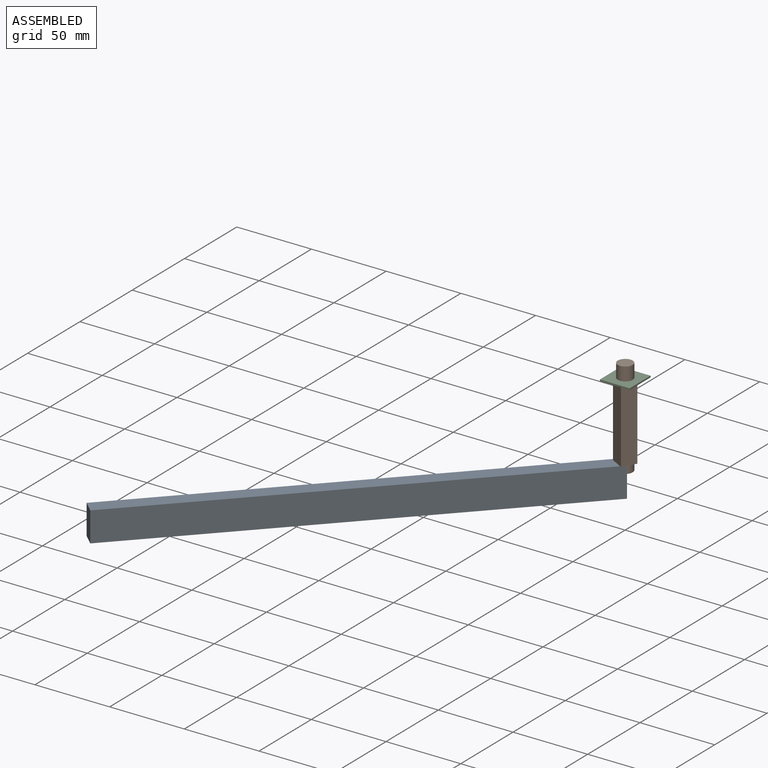
[diagram: assembled view]
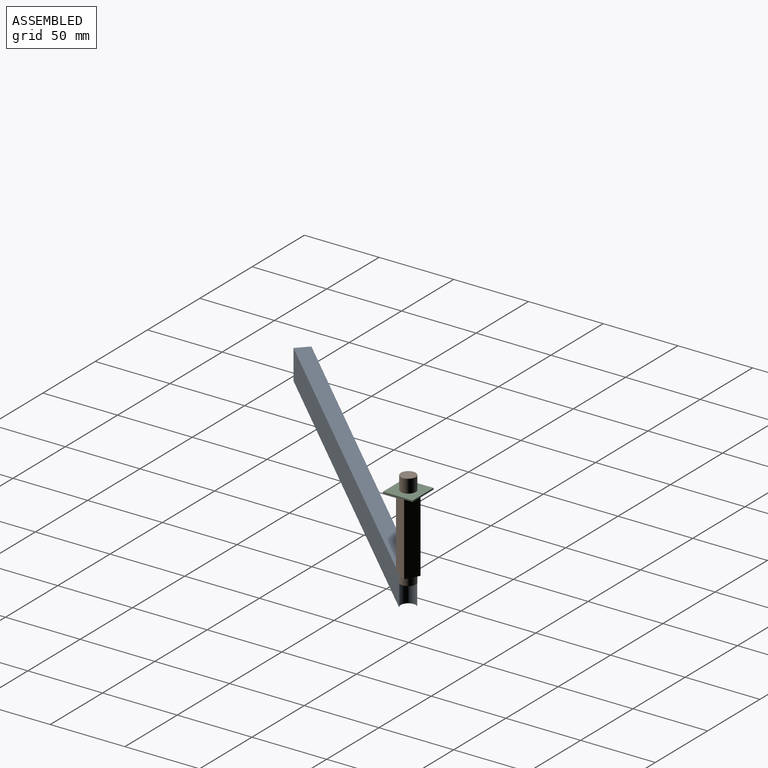
[diagram: assembled view, second angle]
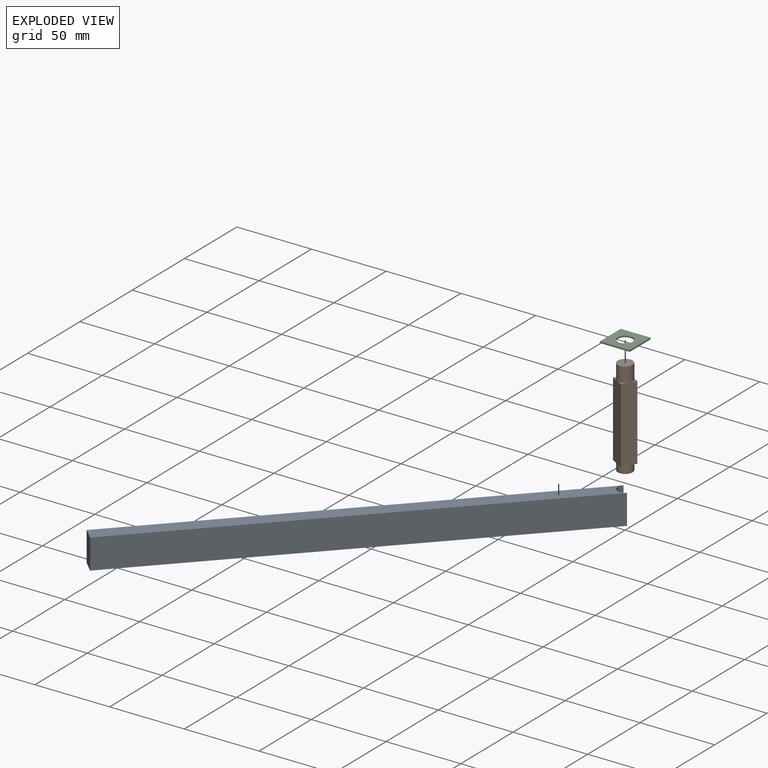
[diagram: exploded view]
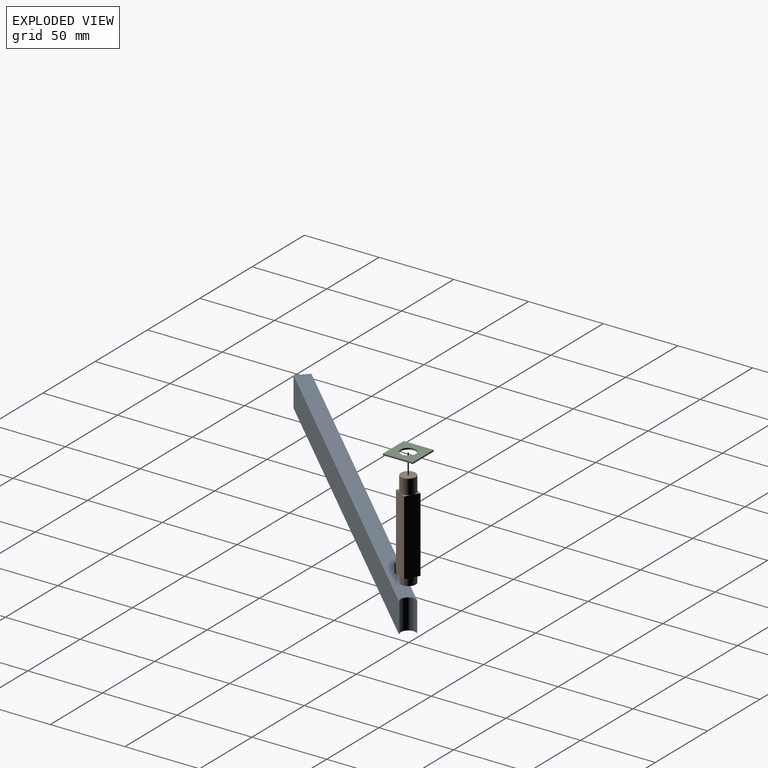
[diagram: exploded view, second angle]
ASSEMBLY  parts=3 mates=2
PART A: 6 faces, bbox 10x300x20 mm
  f0: plane 300x10mm, normal (0,0,-1), area 2960.7mm2, adj f1,f3,f4,f5
  f1: plane 300x20mm, normal (1,0,0), area 6000mm2, adj f0,f2,f4,f5
  f2: plane 300x10mm, normal (0,0,1), area 2960.7mm2, adj f1,f3,f4,f5
  f3: plane 300x20mm, normal (-1,0,0), area 6000mm2, adj f0,f2,f4,f5
  f4: plane 20x10mm, normal (0,-1,0), area 200mm2, adj f0,f1,f2,f3
  f5: cylinder r=5mm len=20mm, axis (0,0,1), area 314.2mm2, adj f0,f1,f2,f3
PART B: 16 faces, bbox 10x10x65 mm
  f0: plane 5x5mm, normal (0,0,1), area 5.4mm2, adj f7,f8,f14
  f1: plane 5x5mm, normal (0,0,1), area 5.4mm2, adj f8,f9,f14
  f2: plane 5x5mm, normal (0,0,1), area 5.4mm2, adj f6,f9,f14
  f3: plane 5x5mm, normal (0,0,-1), area 5.4mm2, adj f6,f7,f12
  f4: plane 5x5mm, normal (0,0,-1), area 5.4mm2, adj f6,f9,f12
  f5: plane 5x5mm, normal (0,0,-1), area 5.4mm2, adj f8,f9,f12
  f6: plane 50x10mm, normal (0,-1,0), area 500mm2, adj f2,f3,f4,f7,f9,f10
  f7: plane 50x10mm, normal (1,0,0), area 500mm2, adj f0,f3,f6,f8,f10,f11
  f8: plane 50x10mm, normal (0,1,0), area 500mm2, adj f0,f1,f5,f7,f9,f11
  f9: plane 50x10mm, normal (-1,0,0), area 500mm2, adj f1,f2,f4,f5,f6,f8
  f10: plane 5x5mm, normal (0,0,1), area 5.4mm2, adj f6,f7,f14
  f11: plane 5x5mm, normal (0,0,-1), area 5.4mm2, adj f7,f8,f12
  f12: cylinder r=5mm len=10mm, axis (0,0,1), area 157.1mm2, adj f3,f4,f5,f11,f13
  f13: plane 10x10mm, normal (0,0,-1), area 78.5mm2, adj f12
  f14: cylinder r=5mm len=10mm, axis (0,0,-1), area 314.2mm2, adj f0,f1,f2,f10,f15
  f15: plane 10x10mm, normal (0,0,1), area 78.5mm2, adj f14
PART C: 7 faces, bbox 20x20x1 mm
  f0: plane 20x1mm, normal (0,-1,0), area 20mm2, adj f1,f4,f5,f6
  f1: plane 20x1mm, normal (1,0,0), area 20mm2, adj f0,f2,f5,f6
  f2: plane 20x1mm, normal (0,1,0), area 20mm2, adj f1,f4,f5,f6
  f3: cylinder r=5mm len=10mm, axis (0,0,-1), area 31.4mm2, adj f5,f6
  f4: plane 20x1mm, normal (-1,0,0), area 20mm2, adj f0,f2,f5,f6
  f5: plane 20x20mm, normal (0,0,1), area 321.5mm2, adj f0,f1,f2,f3,f4
  f6: plane 20x20mm, normal (0,0,-1), area 321.5mm2, adj f0,f1,f2,f3,f4
PLACE A rot(axis=(0,0,-1),43.8deg) t=(-103.7,-108.38,-60.52)mm
PLACE B rot(axis=(0,0,1),61.1deg) t=(0.22,-0.2,-25.52)mm
PLACE C t=(0.22,-0.2,-0.02)mm fixed
MATE revolute B.f12 <-> C.f3  axis (0,0,-1) through (0.22,-0.2,-0.52)mm
MATE revolute A.f5 <-> B.f12  axis (0,0,1) through (0.22,-0.2,-50.52)mm
